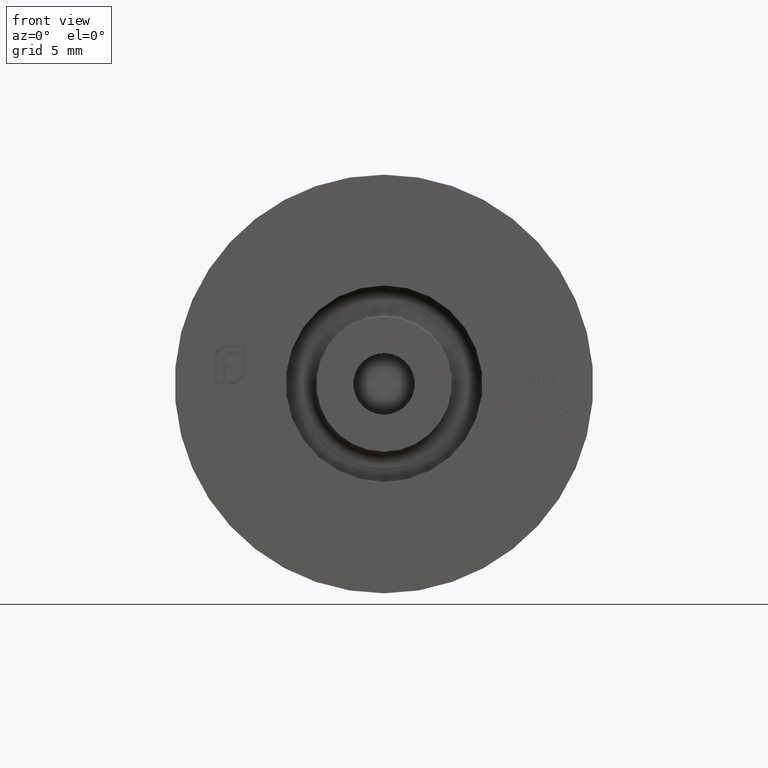
[diagram: clean part render]
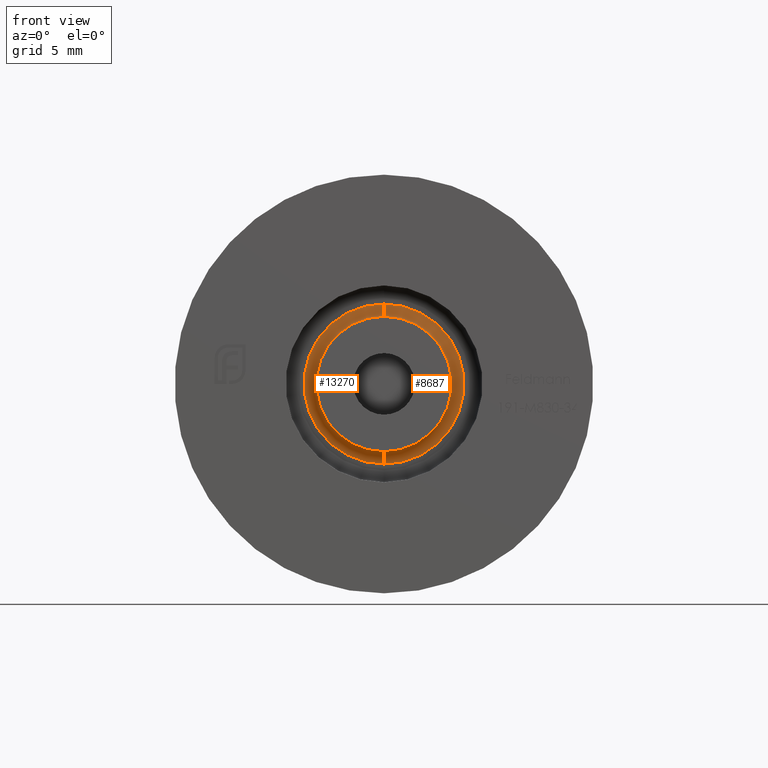
[diagram: same view with one multi-face feature highlighted, each face labeled with its STEP entity id]
A machine part, front view. The highlighted faces form ONE feature: a constant-radius fillet chain: 2 tangent blend faces with common blend radius 1 mm. The faces share edges in the B-rep.
Their STEP definitions:
[1] entity #8687 (Torus):
#301 = DIRECTION ( 'NONE',  ( 0.000000000000000000, 0.000000000000000000, 1.000000000000000000 ) ) ;
#348 = CARTESIAN_POINT ( 'NONE',  ( 0.000000000000000000, 2.000000000000001776, 0.000000000000000000 ) ) ;
#620 = EDGE_CURVE ( 'NONE', #6373, #8114, #14482, .T. ) ;
#632 = ORIENTED_EDGE ( 'NONE', *, *, #1459, .T. ) ;
#1245 = CIRCLE ( 'NONE', #2695, 5.500000000000000000 ) ;
#1459 = EDGE_CURVE ( 'NONE', #15756, #9287, #3850, .T. ) ;
#1907 = CARTESIAN_POINT ( 'NONE',  ( 7.960204194457795477E-16, 3.000000000000000888, 6.500000000000000000 ) ) ;
#2584 = EDGE_CURVE ( 'NONE', #15756, #6373, #1245, .T. ) ;
#2695 = AXIS2_PLACEMENT_3D ( 'NONE', #348, #4062, #2841 ) ;
#2841 = DIRECTION ( 'NONE',  ( 0.000000000000000000, 0.000000000000000000, -1.000000000000000000 ) ) ;
#3020 = DIRECTION ( 'NONE',  ( 0.000000000000000000, 0.000000000000000000, -1.000000000000000000 ) ) ;
#3730 = DIRECTION ( 'NONE',  ( 0.000000000000000000, 0.000000000000000000, -1.000000000000000000 ) ) ;
#3850 = CIRCLE ( 'NONE', #11555, 1.000000000000000000 ) ;
#4062 = DIRECTION ( 'NONE',  ( 0.000000000000000000, -1.000000000000000000, 0.000000000000000000 ) ) ;
#4572 = ORIENTED_EDGE ( 'NONE', *, *, #620, .F. ) ;
#4861 = DIRECTION ( 'NONE',  ( 1.000000000000000000, 0.000000000000000000, -1.224646799147353207E-16 ) ) ;
#4992 = ORIENTED_EDGE ( 'NONE', *, *, #2584, .F. ) ;
#6373 = VERTEX_POINT ( 'NONE', #15693 ) ;
#6429 = FACE_OUTER_BOUND ( 'NONE', #14749, .T. ) ;
#6455 = AXIS2_PLACEMENT_3D ( 'NONE', #14703, #4861, #8489 ) ;
#6510 = CARTESIAN_POINT ( 'NONE',  ( 0.000000000000000000, 2.000000000000001776, -6.500000000000000000 ) ) ;
#7502 = CARTESIAN_POINT ( 'NONE',  ( 0.000000000000000000, 2.000000000000001776, 0.000000000000000000 ) ) ;
#7506 = TOROIDAL_SURFACE ( 'NONE', #14999, 6.500000000000000000, 1.000000000000000000 ) ;
#7973 = DIRECTION ( 'NONE',  ( -0.000000000000000000, 1.000000000000000000, -0.000000000000000000 ) ) ;
#8114 = VERTEX_POINT ( 'NONE', #1907 ) ;
#8489 = DIRECTION ( 'NONE',  ( -1.224646799147353454E-16, 0.000000000000000000, -1.000000000000000000 ) ) ;
#8687 = ADVANCED_FACE ( 'NONE', ( #6429 ), #7506, .F. ) ;
#9287 = VERTEX_POINT ( 'NONE', #12755 ) ;
#10114 = ORIENTED_EDGE ( 'NONE', *, *, #14235, .F. ) ;
#10391 = CARTESIAN_POINT ( 'NONE',  ( 0.000000000000000000, 3.000000000000000000, 0.000000000000000000 ) ) ;
#11192 = CARTESIAN_POINT ( 'NONE',  ( 6.735557395310442023E-16, 2.000000000000001776, -5.500000000000000000 ) ) ;
#11555 = AXIS2_PLACEMENT_3D ( 'NONE', #6510, #13853, #301 ) ;
#12755 = CARTESIAN_POINT ( 'NONE',  ( 0.000000000000000000, 3.000000000000000888, -6.500000000000000000 ) ) ;
#13234 = DIRECTION ( 'NONE',  ( 0.000000000000000000, -1.000000000000000000, 0.000000000000000000 ) ) ;
#13853 = DIRECTION ( 'NONE',  ( -1.000000000000000000, -0.000000000000000000, -0.000000000000000000 ) ) ;
#14235 = EDGE_CURVE ( 'NONE', #8114, #9287, #14438, .T. ) ;
#14438 = CIRCLE ( 'NONE', #15426, 6.500000000000000000 ) ;
#14482 = CIRCLE ( 'NONE', #6455, 1.000000000000000000 ) ;
#14703 = CARTESIAN_POINT ( 'NONE',  ( 7.960204194457795477E-16, 2.000000000000001776, 6.500000000000000000 ) ) ;
#14749 = EDGE_LOOP ( 'NONE', ( #4572, #4992, #632, #10114 ) ) ;
#14999 = AXIS2_PLACEMENT_3D ( 'NONE', #7502, #13234, #3730 ) ;
#15426 = AXIS2_PLACEMENT_3D ( 'NONE', #10391, #7973, #3020 ) ;
#15693 = CARTESIAN_POINT ( 'NONE',  ( 0.000000000000000000, 2.000000000000001776, 5.500000000000000000 ) ) ;
#15756 = VERTEX_POINT ( 'NONE', #11192 ) ;
[2] entity #13270 (Torus):
#205 = CIRCLE ( 'NONE', #3082, 6.500000000000000000 ) ;
#301 = DIRECTION ( 'NONE',  ( 0.000000000000000000, 0.000000000000000000, 1.000000000000000000 ) ) ;
#620 = EDGE_CURVE ( 'NONE', #6373, #8114, #14482, .T. ) ;
#622 = CARTESIAN_POINT ( 'NONE',  ( 0.000000000000000000, 3.000000000000000000, 0.000000000000000000 ) ) ;
#741 = CIRCLE ( 'NONE', #8909, 5.500000000000000000 ) ;
#1459 = EDGE_CURVE ( 'NONE', #15756, #9287, #3850, .T. ) ;
#1907 = CARTESIAN_POINT ( 'NONE',  ( 7.960204194457795477E-16, 3.000000000000000888, 6.500000000000000000 ) ) ;
#3082 = AXIS2_PLACEMENT_3D ( 'NONE', #622, #3109, #15913 ) ;
#3109 = DIRECTION ( 'NONE',  ( -0.000000000000000000, 1.000000000000000000, -0.000000000000000000 ) ) ;
#3850 = CIRCLE ( 'NONE', #11555, 1.000000000000000000 ) ;
#3864 = ORIENTED_EDGE ( 'NONE', *, *, #7737, .F. ) ;
#4248 = ORIENTED_EDGE ( 'NONE', *, *, #12927, .F. ) ;
#4861 = DIRECTION ( 'NONE',  ( 1.000000000000000000, 0.000000000000000000, -1.224646799147353207E-16 ) ) ;
#5763 = CARTESIAN_POINT ( 'NONE',  ( 0.000000000000000000, 2.000000000000001776, 0.000000000000000000 ) ) ;
#6373 = VERTEX_POINT ( 'NONE', #15693 ) ;
#6455 = AXIS2_PLACEMENT_3D ( 'NONE', #14703, #4861, #8489 ) ;
#6510 = CARTESIAN_POINT ( 'NONE',  ( 0.000000000000000000, 2.000000000000001776, -6.500000000000000000 ) ) ;
#6891 = DIRECTION ( 'NONE',  ( 0.000000000000000000, -1.000000000000000000, 0.000000000000000000 ) ) ;
#7558 = DIRECTION ( 'NONE',  ( 0.000000000000000000, 0.000000000000000000, -1.000000000000000000 ) ) ;
#7737 = EDGE_CURVE ( 'NONE', #9287, #8114, #205, .T. ) ;
#8114 = VERTEX_POINT ( 'NONE', #1907 ) ;
#8473 = ORIENTED_EDGE ( 'NONE', *, *, #620, .T. ) ;
#8489 = DIRECTION ( 'NONE',  ( -1.224646799147353454E-16, 0.000000000000000000, -1.000000000000000000 ) ) ;
#8491 = FACE_OUTER_BOUND ( 'NONE', #13530, .T. ) ;
#8909 = AXIS2_PLACEMENT_3D ( 'NONE', #13735, #14975, #7558 ) ;
#9287 = VERTEX_POINT ( 'NONE', #12755 ) ;
#11192 = CARTESIAN_POINT ( 'NONE',  ( 6.735557395310442023E-16, 2.000000000000001776, -5.500000000000000000 ) ) ;
#11555 = AXIS2_PLACEMENT_3D ( 'NONE', #6510, #13853, #301 ) ;
#11885 = AXIS2_PLACEMENT_3D ( 'NONE', #5763, #6891, #14506 ) ;
#12755 = CARTESIAN_POINT ( 'NONE',  ( 0.000000000000000000, 3.000000000000000888, -6.500000000000000000 ) ) ;
#12927 = EDGE_CURVE ( 'NONE', #6373, #15756, #741, .T. ) ;
#13270 = ADVANCED_FACE ( 'NONE', ( #8491 ), #15613, .F. ) ;
#13530 = EDGE_LOOP ( 'NONE', ( #4248, #8473, #3864, #14136 ) ) ;
#13735 = CARTESIAN_POINT ( 'NONE',  ( 0.000000000000000000, 2.000000000000001776, 0.000000000000000000 ) ) ;
#13853 = DIRECTION ( 'NONE',  ( -1.000000000000000000, -0.000000000000000000, -0.000000000000000000 ) ) ;
#14136 = ORIENTED_EDGE ( 'NONE', *, *, #1459, .F. ) ;
#14482 = CIRCLE ( 'NONE', #6455, 1.000000000000000000 ) ;
#14506 = DIRECTION ( 'NONE',  ( 0.000000000000000000, 0.000000000000000000, -1.000000000000000000 ) ) ;
#14703 = CARTESIAN_POINT ( 'NONE',  ( 7.960204194457795477E-16, 2.000000000000001776, 6.500000000000000000 ) ) ;
#14975 = DIRECTION ( 'NONE',  ( 0.000000000000000000, -1.000000000000000000, 0.000000000000000000 ) ) ;
#15613 = TOROIDAL_SURFACE ( 'NONE', #11885, 6.500000000000000000, 1.000000000000000000 ) ;
#15693 = CARTESIAN_POINT ( 'NONE',  ( 0.000000000000000000, 2.000000000000001776, 5.500000000000000000 ) ) ;
#15756 = VERTEX_POINT ( 'NONE', #11192 ) ;
#15913 = DIRECTION ( 'NONE',  ( 0.000000000000000000, 0.000000000000000000, -1.000000000000000000 ) ) ;